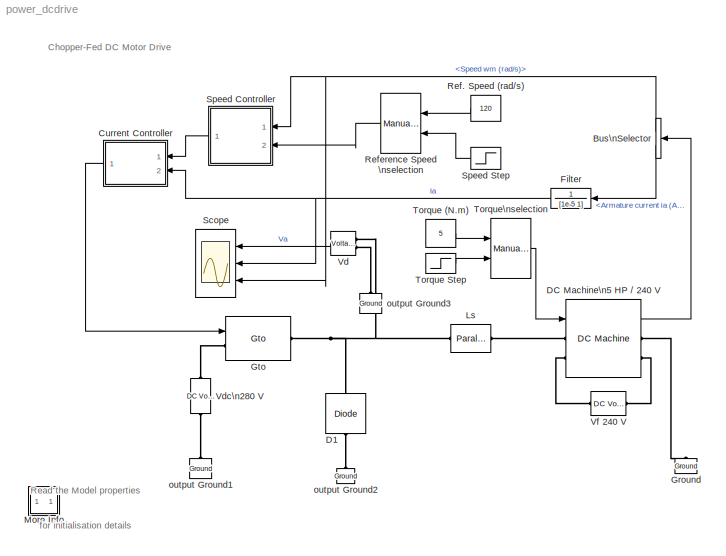
MODEL power_dcdrive
KIND model
CONFIG InitFcn = load power_dcdrive_init
BLOCK [BusSelector] Bus\nSelector
  DialogController = Simulink.DDGSource_Bus
  OutputSignals = Speed wm (rad/s),Armature current ia (A)
  Ports = [1, 2]
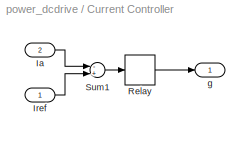
BLOCK [SubSystem] Current Controller
  MaskDescription = Hysteresis Current Controller
  MaskDisplay = plot(0,0,100,100,[45,45],[35,65],[55,55],[35,65],[45,65],[65,65],[35,55],[35,35])
  MaskEnableString = on
  MaskIconFrame = on
  MaskIconOpaque = off
  MaskIconRotate = none
  MaskIconUnits = autoscale
  MaskPromptString = Hysteresis band (A)
  MaskStyleString = edit
  MaskToolTipString = on
  MaskTunableValueString = on
  MaskValueString = 2
  MaskVariables = h=@1;
  MaskVisibilityString = on
  MinAlgLoopOccurrences = off
  Ports = [2, 1]
  RTWSystemCode = Auto
  TreatAsAtomicUnit = off
BLOCK [Inport] Current Controller/Ia
  IconDisplay = Port number
  LatchInput = off
  Port = 2
BLOCK [Inport] Current Controller/Iref
  IconDisplay = Port number
  LatchInput = off
  Port = 1
BLOCK [Relay] Current Controller/Relay
  OffSwitchValue = -h/2
  OnSwitchValue = h/2
BLOCK [Sum] Current Controller/Sum1
  Inputs = -+
  Ports = [2, 1]
BLOCK [Outport] Current Controller/g
  BusOutputAsStruct = off
  IconDisplay = Port number
  InitialOutput = 0
BLOCK [Reference] D1  REF=powerlib/Power\nElectronics/Diode
  AttributesFormatString = \\n
  Cs = 0.1e-6
  IC = 0
  Lon = 5e-6
  Measurements = off
  Ports = [0, 0, 0, 0, 0, 1, 1]
  Ron = 0.05
  Rs = Inf
  ShowPortLabels = on
  SourceBlock = powerlib/Power\nElectronics/Diode
  SourceType = Diode
  Vf = 0.7
BLOCK [Reference] DC Machine\n5 HP // 240 V  REF=powerlib/Machines/DC Machine
  Bm = 0.02
  J = 0.05
  Laf = 1.23
  Ports = [1, 1, 0, 0, 0, 2, 2]
  PresetModel = No
  RLa = [ 0.5  0.01]
  RLf = [ 240  120]
  ShowDetailedParameters = on
  ShowPortLabels = on
  SourceBlock = powerlib/Machines/DC Machine
  SourceType = DC machine
  Tf = 0
  w0 = 0.1
BLOCK [TransferFcn] Filter
  Denominator = [1e-5 1]
  MaskDisplay = disp('Filter')
  MaskIconFrame = on
  MaskIconOpaque = on
  MaskIconRotate = none
  MaskIconUnits = autoscale
  Numerator = 1
BLOCK [Reference] Ground  REF=powerlib/Elements/Ground
  AttributesFormatString = \\n
  LConnTagsString = a
  LeftPortType = p1
  PhysicalDomain = powersysdomain
  Ports = [0, 0, 0, 0, 0, 1]
  RightPortType = p1
  SourceBlock = powerlib/Elements/Ground
  SourceType = Ground
  SubClassName = unknown
BLOCK [Reference] Gto  REF=powerlib/Power\nElectronics/Gto
  AttributesFormatString = \\n
  Cs = 0.1e-6
  IC = 0
  Lon = 1e-6
  Measurements = off
  Ports = [1, 0, 0, 0, 0, 1, 1]
  Ron = 0.05
  Rs = 100
  ShowPortLabels = on
  SourceBlock = powerlib/Power\nElectronics/Gto
  SourceType = Gto
  Tf = 1e-6
  Tt = 1e-6
  Vf = 1
BLOCK [Reference] Ls  REF=powerlib/Elements/Parallel RLC Branch
  AttributesFormatString = \\n
  Capacitance = 0
  Inductance = 10e-03
  LConnTagsString = a
  LeftPortType = p1
  Measurements = None
  PhysicalDomain = powersysdomain
  Ports = [0, 0, 0, 0, 0, 1, 1]
  RConnTagsString = __new0
  Resistance = inf
  RightPortType = p1
  SourceBlock = powerlib/Elements/Parallel RLC Branch
  SourceType = Parallel RLC Branch
  SubClassName = unknown
BLOCK [SubSystem] More Info
  MaskDisplay = disp('?')
  MaskIconFrame = on
  MaskIconOpaque = on
  MaskIconRotate = none
  MaskIconUnits = autoscale
  MinAlgLoopOccurrences = off
  Ports = []
  RTWSystemCode = Auto
  TreatAsAtomicUnit = off
BLOCK [Constant] Ref. Speed (rad//s)
  Value = 120
BLOCK [Reference] Reference Speed \nselection  REF=simulink/Signal\nRouting/Manual Switch
  Ports = [2, 1]
  ShowPortLabels = on
  SourceBlock = simulink/Signal\nRouting/Manual Switch
  SourceType = Manual Switch
  action = 0
  sw = 1
BLOCK [Scope] Scope
  DataFormat = StructureWithTime
  Decimation = 20
  LimitDataPoints = off
  NumInputPorts = 3
  Ports = [3]
  SaveName = var
  SaveToWorkspace = on
  TickLabels = on
  YMax = 300~7.5~120.03
  YMin = -300~4.5~119.99
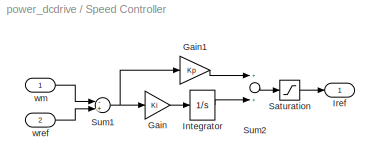
BLOCK [SubSystem] Speed Controller
  MaskCallbackString = ||
  MaskDescription = Proportional-Integral Speed Controller
  MaskDisplay = plot(0,0,100,100,[35,35,65],[70,30,30],[35,65],[45,60])
  MaskEnableString = on,on,on
  MaskIconFrame = on
  MaskIconOpaque = off
  MaskIconRotate = none
  MaskIconUnits = autoscale
  MaskPromptString = Proportional gain (Kp)|Integral gain (Ki)|Current limit (A)
  MaskStyleString = edit,edit,edit
  MaskTabNameString = ,,
  MaskToolTipString = on,on,on
  MaskTunableValueString = on,on,on
  MaskType = PI controller
  MaskValueString = 1.6|16|30
  MaskVarAliasString = ,,
  MaskVariables = Kp=@1;Ki=@2;Ilim=@3;
  MaskVisibilityString = on,on,on
  MinAlgLoopOccurrences = off
  Ports = [2, 1]
  RTWSystemCode = Auto
  TreatAsAtomicUnit = off
BLOCK [Gain] Speed Controller/Gain
  Gain = Ki
BLOCK [Gain] Speed Controller/Gain1
  Gain = Kp
BLOCK [Integrator] Speed Controller/Integrator
  LimitOutput = on
  LowerSaturationLimit = -Ilim
  Ports = [1, 1]
  UpperSaturationLimit = Ilim
BLOCK [Outport] Speed Controller/Iref
  BusOutputAsStruct = off
  IconDisplay = Port number
  InitialOutput = 0
BLOCK [Saturate] Speed Controller/Saturation
  LowerLimit = -Ilim
  UpperLimit = Ilim
BLOCK [Sum] Speed Controller/Sum1
  Inputs = -+
  Ports = [2, 1]
BLOCK [Sum] Speed Controller/Sum2
  Ports = [2, 1]
BLOCK [Inport] Speed Controller/wm
  IconDisplay = Port number
  LatchInput = off
  Port = 1
BLOCK [Inport] Speed Controller/wref
  IconDisplay = Port number
  LatchInput = off
  Port = 2
BLOCK [Step] Speed Step
  After = 160
  Before = 120
  SampleTime = 0
  Time = 0.4
BLOCK [Constant] Torque (N.m)
  Value = 5
BLOCK [Step] Torque Step
  After = 25
  Before = 5
  SampleTime = 0
  Time = 1.2
BLOCK [Reference] Torque\nselection  REF=simulink/Signal\nRouting/Manual Switch
  Ports = [2, 1]
  ShowPortLabels = on
  SourceBlock = simulink/Signal\nRouting/Manual Switch
  SourceType = Manual Switch
  action = 0
  sw = 1
BLOCK [Reference] Vd  REF=powerlib/Measurements/Voltage Measurement
  AttributesFormatString = \\n
  OutputType = Magnitude
  PSBequivalent = 0
  PhasorSimulation = off
  Ports = [0, 1, 0, 0, 0, 2]
  ShowPortLabels = on
  SourceBlock = powerlib/Measurements/Voltage Measurement
  SourceType = Voltage Measurement
  Tag = PoWeRsYsTeMmEaSuReMeNt
BLOCK [Reference] Vdc\n280 V   REF=powerlib/Electrical\nSources/DC Voltage Source
  Amplitude = 280
  AttributesFormatString = \\n
  Description = source block
  Measurements = None
  Ports = [0, 0, 0, 0, 0, 1, 1]
  ShowPortLabels = on
  SourceBlock = powerlib/Electrical\nSources/DC Voltage Source
  SourceType = DC Voltage Source
BLOCK [Reference] Vf 240 V  REF=powerlib/Electrical\nSources/DC Voltage Source
  Amplitude = 240
  AttributesFormatString = \\n
  Description = source block
  Measurements = None
  Ports = [0, 0, 0, 0, 0, 1, 1]
  ShowPortLabels = on
  SourceBlock = powerlib/Electrical\nSources/DC Voltage Source
  SourceType = DC Voltage Source
BLOCK [Reference] output Ground1  REF=powerlib/Elements/Ground
  AttributesFormatString = \\n
  LConnTagsString = a
  LeftPortType = p1
  PhysicalDomain = powersysdomain
  Ports = [0, 0, 0, 0, 0, 1]
  RightPortType = p1
  SourceBlock = powerlib/Elements/Ground
  SourceType = Ground
  SubClassName = unknown
BLOCK [Reference] output Ground2  REF=powerlib/Elements/Ground
  AttributesFormatString = \\n
  LConnTagsString = a
  LeftPortType = p1
  PhysicalDomain = powersysdomain
  Ports = [0, 0, 0, 0, 0, 1]
  RightPortType = p1
  SourceBlock = powerlib/Elements/Ground
  SourceType = Ground
  SubClassName = unknown
BLOCK [Reference] output Ground3  REF=powerlib/Elements/Ground
  AttributesFormatString = \\n
  LConnTagsString = a
  LeftPortType = p1
  PhysicalDomain = powersysdomain
  Ports = [0, 0, 0, 0, 0, 1]
  RightPortType = p1
  SourceBlock = powerlib/Elements/Ground
  SourceType = Ground
  SubClassName = unknown
ANNOTATION (root): Chopper-Fed DC Motor Drive
ANNOTATION (root): Read the Model properties\nfor initialisation details
ANNOTATION More Info: Case study: Chopper-Fed DC Motor Drive
ANNOTATION More Info: Circuit Description
ANNOTATION More Info: Demonstration
ANNOTATION More Info: H. Le-Huy (Universite Laval, Quebec)
ANNOTATION More Info: Start the simulation. Observe the motor current, voltage, and speed during the starting on the scope.\n\nAt the end of the simulation time (1.5 s), the system has reached its steady-state. The final state vector can\nbe saved by previously selecting 'Workspace I/O/Save to workspace/Final state' in Simulation/Parameters window.\nOnce the simultion is finished save the xFinal variable into xInitial....<+682ch>
ANNOTATION More Info: The DC motor is fed by the DC source through a chopper which consists of GTO thyristor Th1\nand free-wheeling diode D1. The motor drives a mechanical load characterized by inertia J, friction\ncoeficient B, and load torque TL.\n\nThe hysteresis current controller compares the sensed current with the reference and generates \nthe trigger signal for the GTO thyristor to force the motor current to fo...<+218ch>
NET Bus\nSelector:1 -> Scope:3, Speed Controller:1
LINE Bus\nSelector:2 -> Filter:1
LINE Current Controller/Ia:1 -> Current Controller/Sum1:1
LINE Current Controller/Iref:1 -> Current Controller/Sum1:2
LINE Current Controller/Relay:1 -> Current Controller/g:1
LINE Current Controller/Sum1:1 -> Current Controller/Relay:1
LINE Current Controller:1 -> Gto:1
LINE DC Machine\n5 HP // 240 V:1 -> Bus\nSelector:1
NET Filter:1 -> Current Controller:2, Scope:2
LINE Ref. Speed (rad//s):1 -> Reference Speed \nselection:1
LINE Reference Speed \nselection:1 -> Speed Controller:2
LINE Speed Controller/Gain1:1 -> Speed Controller/Sum2:1
LINE Speed Controller/Gain:1 -> Speed Controller/Integrator:1
LINE Speed Controller/Integrator:1 -> Speed Controller/Sum2:2
LINE Speed Controller/Saturation:1 -> Speed Controller/Iref:1
NET Speed Controller/Sum1:1 -> Speed Controller/Gain1:1, Speed Controller/Gain:1
LINE Speed Controller/Sum2:1 -> Speed Controller/Saturation:1
LINE Speed Controller/wm:1 -> Speed Controller/Sum1:1
LINE Speed Controller/wref:1 -> Speed Controller/Sum1:2
LINE Speed Controller:1 -> Current Controller:1
LINE Speed Step:1 -> Reference Speed \nselection:2
LINE Torque (N.m):1 -> Torque\nselection:1
LINE Torque Step:1 -> Torque\nselection:2
LINE Torque\nselection:1 -> DC Machine\n5 HP // 240 V:1
LINE Vd:1 -> Scope:1
PLINE D1:LConn1 -- output Ground2:LConn1
PNET net1: D1:RConn1 -- Gto:RConn1 -- Ls:LConn1 -- Vd:LConn1
PLINE DC Machine\n5 HP // 240 V:LConn1 -- Ls:RConn1
PLINE DC Machine\n5 HP // 240 V:LConn2 -- Vf 240 V:RConn1
PLINE DC Machine\n5 HP // 240 V:RConn1 -- Ground:LConn1
PLINE DC Machine\n5 HP // 240 V:RConn2 -- Vf 240 V:LConn1
PLINE Gto:LConn1 -- Vdc\n280 V :RConn1
PLINE Vd:LConn2 -- output Ground3:LConn1
PLINE Vdc\n280 V :LConn1 -- output Ground1:LConn1
note: NET lines group one-source signal fan-out (src -> all destinations, sorted); 1:1 wires keep LINE; PNET lines group multi-terminal physical nets as a canonical sorted terminal list (undirected conserving connections); 2-terminal nets keep the pairwise PLINE form
